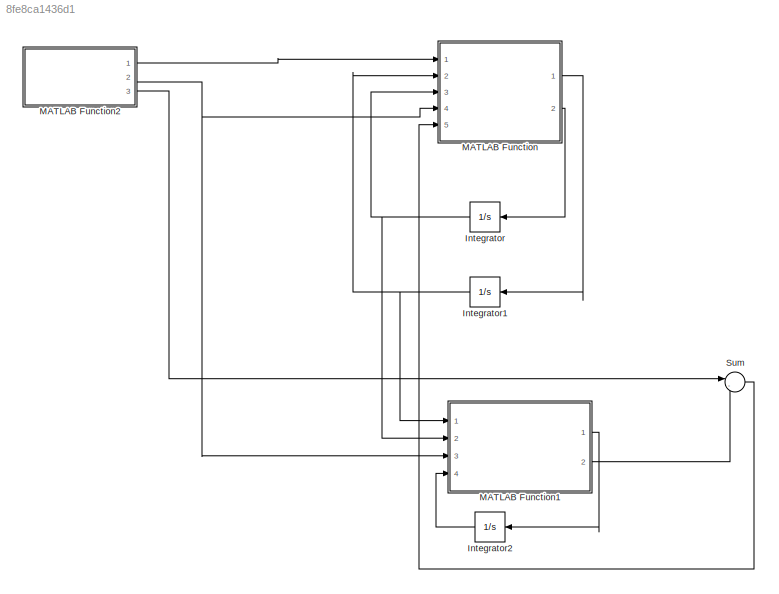
MODEL slx_8fe8ca1436d1
KIND model
CONFIG AbsTol = auto
CONFIG EnableMultiTasking = off
CONFIG FixedStep = auto
CONFIG MaxStep = auto
CONFIG MinStep = auto
CONFIG RelTol = 1e-3
CONFIG SampleTimeConstraint = Unconstrained
CONFIG Solver = VariableStepAuto
CONFIG SolverName = VariableStepAuto
CONFIG StartTime = 0.0
CONFIG StopTime = 10.0
BLOCK [Integrator] Integrator
  Ports = [1, 1]
BLOCK [Integrator] Integrator1
  Ports = [1, 1]
BLOCK [Integrator] Integrator2
  Ports = [1, 1]
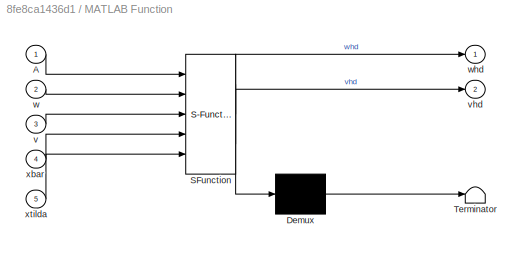
BLOCK [SubSystem] MATLAB Function
  ErrorFcn = Stateflow.Translate.translate
  PermitHierarchicalResolution = ExplicitOnly
  Ports = [5, 2]
  RequestExecContextInheritance = off
  SFBlockType = MATLAB Function
  TreatAsAtomicUnit = on
  Variant = off
BLOCK [Demux] MATLAB Function/ Demux 
  Outputs = 1
  Ports = [1, 1]
BLOCK [S-Function] MATLAB Function/ SFunction 
  EnableBusSupport = on
  FunctionName = sf_sfun
  PortCounts = [5 3]
  Ports = [5, 3]
  SFcnIsStateOwnerBlock = off
  SFunctionDeploymentMode = off
  Tag = Stateflow S-Function Untitled1 2
BLOCK [Terminator] MATLAB Function/ Terminator 
BLOCK [Inport] MATLAB Function/A
  IconDisplay = Port number
BLOCK [Inport] MATLAB Function/v
  IconDisplay = Port number
  Port = 3
BLOCK [Outport] MATLAB Function/vhd
  IconDisplay = Port number
  Port = 2
BLOCK [Inport] MATLAB Function/w
  IconDisplay = Port number
  Port = 2
BLOCK [Outport] MATLAB Function/whd
  IconDisplay = Port number
BLOCK [Inport] MATLAB Function/xbar
  IconDisplay = Port number
  Port = 4
BLOCK [Inport] MATLAB Function/xtilda
  IconDisplay = Port number
  Port = 5
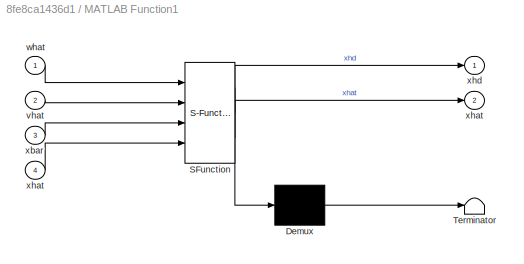
BLOCK [SubSystem] MATLAB Function1
  ErrorFcn = Stateflow.Translate.translate
  PermitHierarchicalResolution = ExplicitOnly
  Ports = [4, 2]
  RequestExecContextInheritance = off
  SFBlockType = MATLAB Function
  TreatAsAtomicUnit = on
  Variant = off
BLOCK [Demux] MATLAB Function1/ Demux 
  Outputs = 1
  Ports = [1, 1]
BLOCK [S-Function] MATLAB Function1/ SFunction 
  EnableBusSupport = on
  FunctionName = sf_sfun
  PortCounts = [4 3]
  Ports = [4, 3]
  SFcnIsStateOwnerBlock = off
  SFunctionDeploymentMode = off
  Tag = Stateflow S-Function Untitled1 3
BLOCK [Terminator] MATLAB Function1/ Terminator 
BLOCK [Inport] MATLAB Function1/vhat
  IconDisplay = Port number
  Port = 2
BLOCK [Inport] MATLAB Function1/what
  IconDisplay = Port number
BLOCK [Inport] MATLAB Function1/xbar
  IconDisplay = Port number
  Port = 3
BLOCK [Outport] MATLAB Function1/xhat
  IconDisplay = Port number
  Port = 2
BLOCK [Inport] MATLAB Function1/xhat 
  IconDisplay = Port number
  Port = 4
BLOCK [Outport] MATLAB Function1/xhd
  IconDisplay = Port number
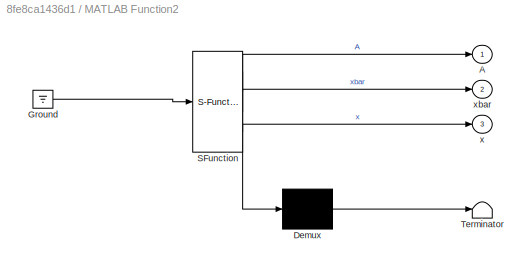
BLOCK [SubSystem] MATLAB Function2
  ErrorFcn = Stateflow.Translate.translate
  PermitHierarchicalResolution = ExplicitOnly
  Ports = [0, 3]
  RequestExecContextInheritance = off
  SFBlockType = MATLAB Function
  TreatAsAtomicUnit = on
  Variant = off
BLOCK [Demux] MATLAB Function2/ Demux 
  Outputs = 1
  Ports = [1, 1]
BLOCK [Ground] MATLAB Function2/ Ground 
BLOCK [S-Function] MATLAB Function2/ SFunction 
  EnableBusSupport = on
  FunctionName = sf_sfun
  PortCounts = [1 4]
  Ports = [1, 4]
  SFcnIsStateOwnerBlock = off
  SFunctionDeploymentMode = off
  Tag = Stateflow S-Function Untitled1 1
BLOCK [Terminator] MATLAB Function2/ Terminator 
BLOCK [Outport] MATLAB Function2/A
  IconDisplay = Port number
BLOCK [Outport] MATLAB Function2/x
  IconDisplay = Port number
  Port = 3
BLOCK [Outport] MATLAB Function2/xbar
  IconDisplay = Port number
  Port = 2
BLOCK [Sum] Sum
  IconShape = round
  InputSameDT = off
  Inputs = |-+
  OutDataTypeStr = Inherit: Inherit via internal rule
  Ports = [2, 1]
  SaturateOnIntegerOverflow = off
NET Integrator1:1 -> MATLAB Function1:1, MATLAB Function:2
LINE Integrator2:1 -> MATLAB Function1:4
NET Integrator:1 -> MATLAB Function1:2, MATLAB Function:3
LINE MATLAB Function1:1 -> Integrator2:1
LINE MATLAB Function1:2 -> Sum:2
LINE MATLAB Function2:1 -> MATLAB Function:1
NET MATLAB Function2:2 -> MATLAB Function1:3, MATLAB Function:4
LINE MATLAB Function2:3 -> Sum:1
LINE MATLAB Function:1 -> Integrator1:1
LINE MATLAB Function:2 -> Integrator:1
LINE Sum:1 -> MATLAB Function:5
note: NET lines group one-source signal fan-out (src -> all destinations, sorted); 1:1 wires keep LINE
CHART MATLAB Function2 states=1 transitions=1
  STATE_LABEL 'eML_blk_kernel()'
  STATE_LABEL 'SCRIPT:\nfunction [A,xbar,x]= fcn\nn=4;\nA=-eye(n);\nxbar=\nx=\n\n'
CHART MATLAB Function states=1 transitions=1
  STATE_LABEL 'eML_blk_kernel()'
  STATE_LABEL 'SCRIPT:\nfunction [whd,vhd]= fcn(A,w,v,xbar,xtilda)\neta1 = 0.1;\neta2 = 0.1;\nro1 = 0.5;\nro2 = 0.5;\nwhd=-eta1*xtilda\n\n\n\n\n'
CHART MATLAB Function1 states=1 transitions=1
  STATE_LABEL 'eML_blk_kernel()'
  STATE_LABEL 'SCRIPT:\nfunction [xhd,xhat]= fcn(what,vhat,xbar,xhat)\nsig=zeros(4,1);\nfor i=0:4\n    sig[i] = 2/(1 + exp(-2*vhat(i,1)*xbar)) - 1\n    \nghat=what*sig;\nxhd=ghat+A*xhat;\n\n'
